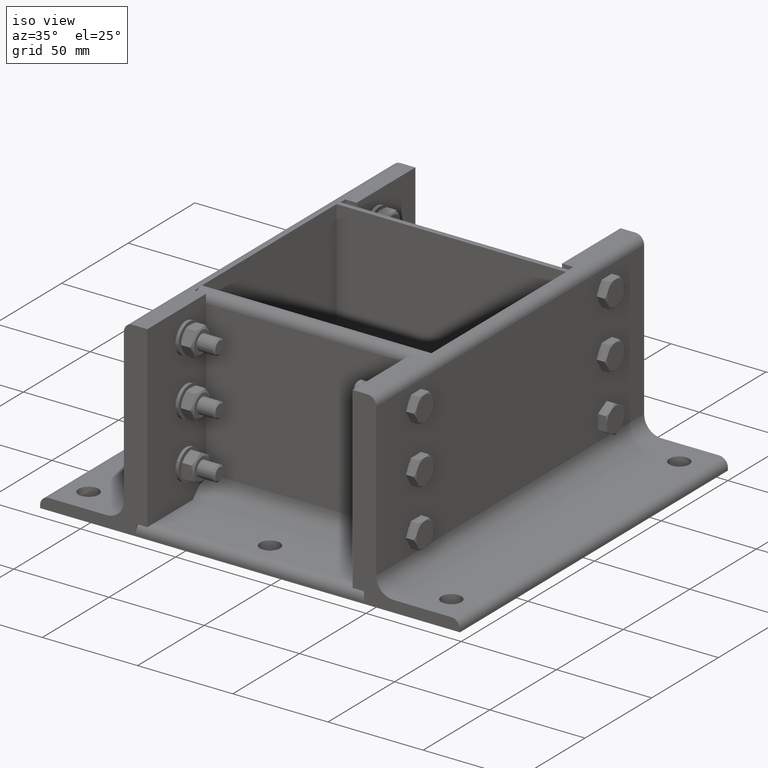
[diagram: clean part render]
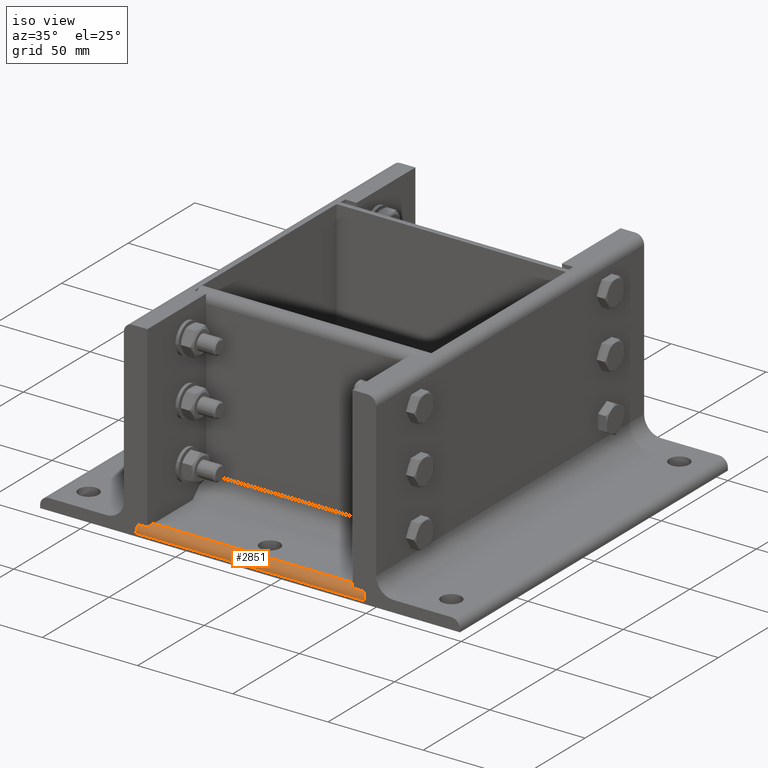
[diagram: same view with one face highlighted and labeled with its STEP entity id]
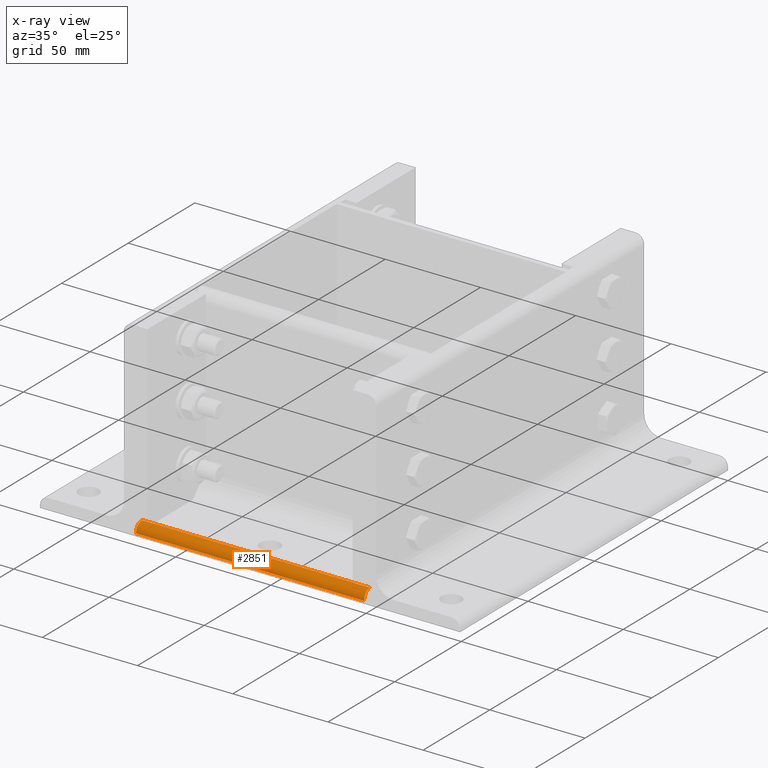
[diagram: x-ray of the same camera — body ghosted, the highlighted face saturated]
A machine part, iso view. The second image highlights one B-rep face of the part: STEP entity #2851.
The next image is the same camera in x-ray: the body ghosted, the highlighted face saturated — about 0% of this face is hidden behind the body in this view.
In plain terms, the highlighted cylindrical surface (edge-blend (fillet) strip) has radius 4.5 mm, axis along (1, -0, 0).
Its self-contained STEP definition (entity closure, byte-faithful):
#2702=CARTESIAN_POINT('',(39.5,119.80000000000001,-1.208471E-014));
#2703=VERTEX_POINT('',#2702);
#2710=CARTESIAN_POINT('',(44.0,119.80000000000001,-4.500000000000012));
#2711=VERTEX_POINT('',#2710);
#2712=CARTESIAN_POINT('',(39.5,119.80000000000001,-4.500000000000012));
#2713=DIRECTION('',(0.0,-1.0,0.0));
#2714=DIRECTION('',(0.707106781186548,0.0,0.707106781186547));
#2715=AXIS2_PLACEMENT_3D('',#2712,#2713,#2714);
#2716=CIRCLE('',#2715,4.5);
#2717=EDGE_CURVE('',#2711,#2703,#2716,.T.);
#2806=CARTESIAN_POINT('',(39.5,0.0,-1.208471E-014));
#2807=VERTEX_POINT('',#2806);
#2814=CARTESIAN_POINT('',(39.5,119.80000000000001,-1.221245E-014));
#2815=DIRECTION('',(0.0,-1.0,0.0));
#2816=VECTOR('',#2815,119.80000000000001);
#2817=LINE('',#2814,#2816);
#2818=EDGE_CURVE('',#2703,#2807,#2817,.T.);
#2827=CARTESIAN_POINT('',(39.5,0.0,-4.500000000000012));
#2828=DIRECTION('',(0.0,1.0,0.0));
#2829=DIRECTION('',(0.707106781186548,0.0,0.707106781186547));
#2830=AXIS2_PLACEMENT_3D('',#2827,#2828,#2829);
#2831=CYLINDRICAL_SURFACE('',#2830,4.5);
#2832=ORIENTED_EDGE('',*,*,#2717,.T.);
#2833=ORIENTED_EDGE('',*,*,#2818,.T.);
#2834=CARTESIAN_POINT('',(44.0,0.0,-4.500000000000012));
#2835=VERTEX_POINT('',#2834);
#2836=CARTESIAN_POINT('',(39.5,0.0,-4.500000000000012));
#2837=DIRECTION('',(0.0,1.0,0.0));
#2838=DIRECTION('',(0.707106781186548,0.0,0.707106781186547));
#2839=AXIS2_PLACEMENT_3D('',#2836,#2837,#2838);
#2840=CIRCLE('',#2839,4.5);
#2841=EDGE_CURVE('',#2807,#2835,#2840,.T.);
#2842=ORIENTED_EDGE('',*,*,#2841,.T.);
#2843=CARTESIAN_POINT('',(44.0,0.0,-4.500000000000012));
#2844=DIRECTION('',(0.0,1.0,0.0));
#2845=VECTOR('',#2844,119.80000000000001);
#2846=LINE('',#2843,#2845);
#2847=EDGE_CURVE('',#2835,#2711,#2846,.T.);
#2848=ORIENTED_EDGE('',*,*,#2847,.T.);
#2849=EDGE_LOOP('',(#2832,#2833,#2842,#2848));
#2850=FACE_OUTER_BOUND('',#2849,.T.);
#2851=ADVANCED_FACE('',(#2850),#2831,.T.);